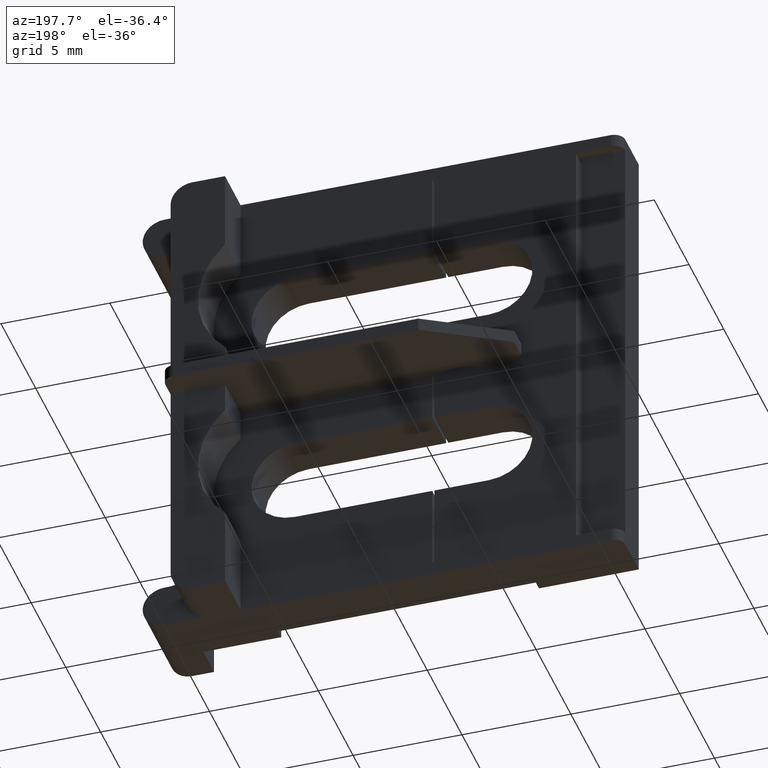
[diagram: clean part render]
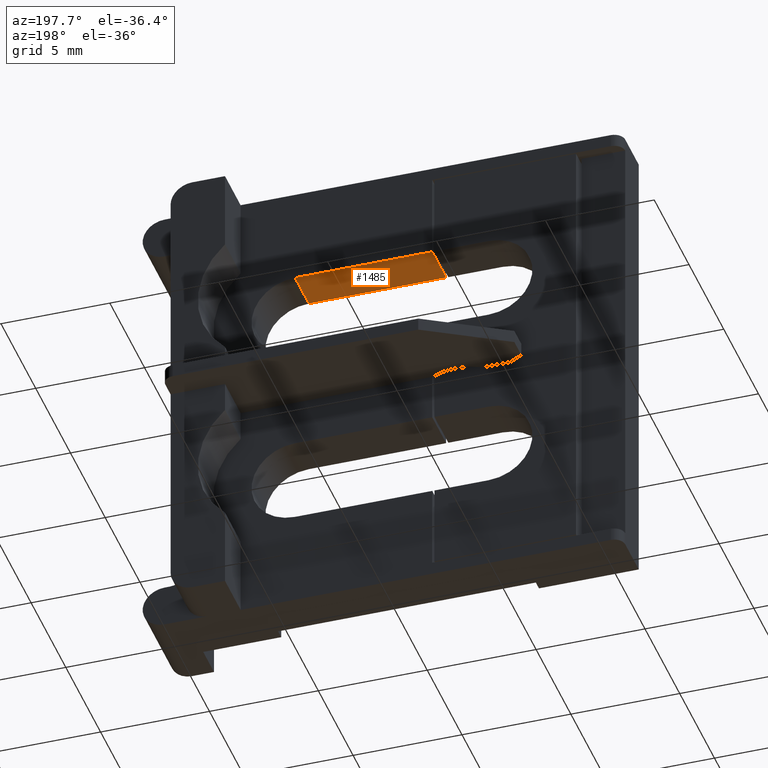
[diagram: same view with one face highlighted and labeled with its STEP entity id]
A machine part, auxiliary view. The second image highlights one B-rep face of the part: STEP entity #1485.
In plain terms, the highlighted planar face has unit normal (-0, 0, 1).
Its self-contained STEP definition (entity closure, byte-faithful):
#82 = AXIS2_PLACEMENT_3D ( 'NONE', #2061, #2152, #2120 ) ;
#135 = VECTOR ( 'NONE', #2314, 1000.000000000000000 ) ;
#155 = VECTOR ( 'NONE', #2267, 1000.000000000000000 ) ;
#169 = VECTOR ( 'NONE', #2226, 1000.000000000000000 ) ;
#316 = VECTOR ( 'NONE', #1767, 1000.000000000000000 ) ;
#584 = EDGE_LOOP ( 'NONE', ( #1147, #1173, #1240, #1165 ) ) ;
#687 = VERTEX_POINT ( 'NONE', #846 ) ;
#708 = VERTEX_POINT ( 'NONE', #863 ) ;
#738 = VERTEX_POINT ( 'NONE', #909 ) ;
#757 = VERTEX_POINT ( 'NONE', #933 ) ;
#846 = CARTESIAN_POINT ( 'NONE',  ( 459.1252094327940100, 144.0878730676890000, 18.10000000000015800 ) ) ;
#863 = CARTESIAN_POINT ( 'NONE',  ( 452.8252094327941700, 146.0878730676890000, 18.10000000000014400 ) ) ;
#909 = CARTESIAN_POINT ( 'NONE',  ( 459.1252094327940100, 146.0878730676890000, 18.10000000000017200 ) ) ;
#933 = CARTESIAN_POINT ( 'NONE',  ( 452.8252094327941700, 144.0878730676890000, 18.10000000000014400 ) ) ;
#1147 = ORIENTED_EDGE ( 'NONE', *, *, #1538, .F. ) ;
#1165 = ORIENTED_EDGE ( 'NONE', *, *, #1537, .T. ) ;
#1173 = ORIENTED_EDGE ( 'NONE', *, *, #1717, .F. ) ;
#1240 = ORIENTED_EDGE ( 'NONE', *, *, #1517, .F. ) ;
#1485 = ADVANCED_FACE ( 'NONE', ( #2102 ), #2059, .F. ) ;
#1517 = EDGE_CURVE ( 'NONE', #738, #708, #2221, .T. ) ;
#1537 = EDGE_CURVE ( 'NONE', #738, #687, #2266, .T. ) ;
#1538 = EDGE_CURVE ( 'NONE', #757, #687, #2257, .T. ) ;
#1717 = EDGE_CURVE ( 'NONE', #708, #757, #1770, .T. ) ;
#1767 = DIRECTION ( 'NONE',  ( -9.546107180843072800E-035, -1.000000000000000000, 2.733577826868160200E-020 ) ) ;
#1770 = LINE ( 'NONE', #1773, #316 ) ;
#1773 = CARTESIAN_POINT ( 'NONE',  ( 452.8252094327941100, 136.9878730676890100, 18.10000000000014000 ) ) ;
#2059 = PLANE ( 'NONE',  #82 ) ;
#2061 = CARTESIAN_POINT ( 'NONE',  ( 459.1252094327939500, 136.9878730676890100, 18.10000000000016100 ) ) ;
#2102 = FACE_OUTER_BOUND ( 'NONE', #584, .T. ) ;
#2120 = DIRECTION ( 'NONE',  ( 1.000000000000000000, 0.0000000000000000000, 3.492165866658340700E-015 ) ) ;
#2152 = DIRECTION ( 'NONE',  ( -3.492165866658340700E-015, 2.733577826868160200E-020, 1.000000000000000000 ) ) ;
#2221 = LINE ( 'NONE', #2236, #169 ) ;
#2226 = DIRECTION ( 'NONE',  ( -1.000000000000000000, -2.530253133731424900E-033, 6.916643862731900400E-053 ) ) ;
#2236 = CARTESIAN_POINT ( 'NONE',  ( 457.5799457489669100, 146.0878730676890000, 18.10000000000016100 ) ) ;
#2253 = CARTESIAN_POINT ( 'NONE',  ( 459.1252094327940100, 136.9878730676890100, 18.10000000000018600 ) ) ;
#2257 = LINE ( 'NONE', #2328, #135 ) ;
#2266 = LINE ( 'NONE', #2253, #155 ) ;
#2267 = DIRECTION ( 'NONE',  ( 2.530253133731424900E-033, -1.000000000000000000, 2.733577826868160200E-020 ) ) ;
#2314 = DIRECTION ( 'NONE',  ( 1.000000000000000000, 2.530253133731424900E-033, -6.916643862731900400E-053 ) ) ;
#2328 = CARTESIAN_POINT ( 'NONE',  ( 479.5850360910421800, 144.0878730676890000, 18.10000000000012600 ) ) ;